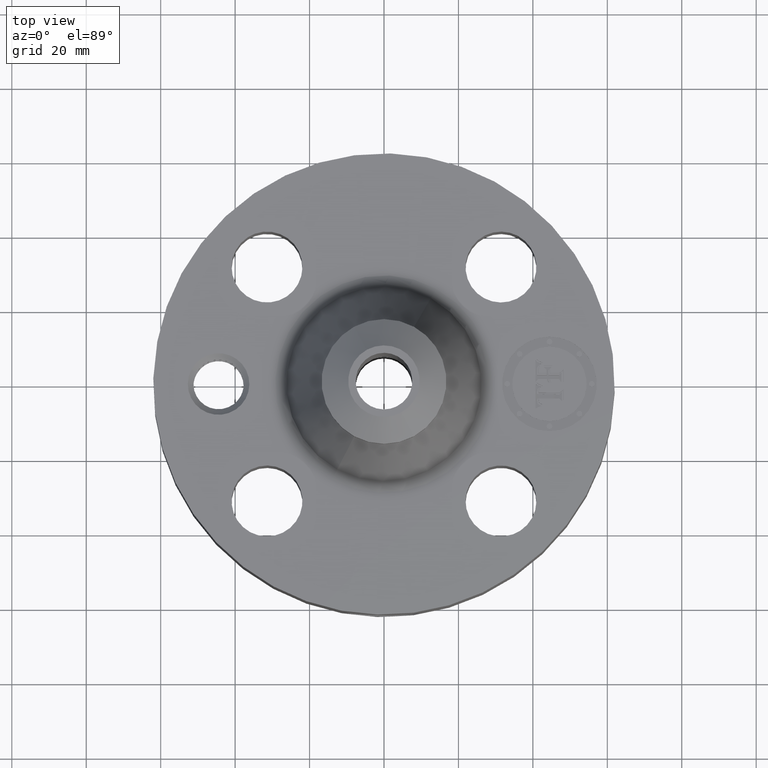
[diagram: clean part render]
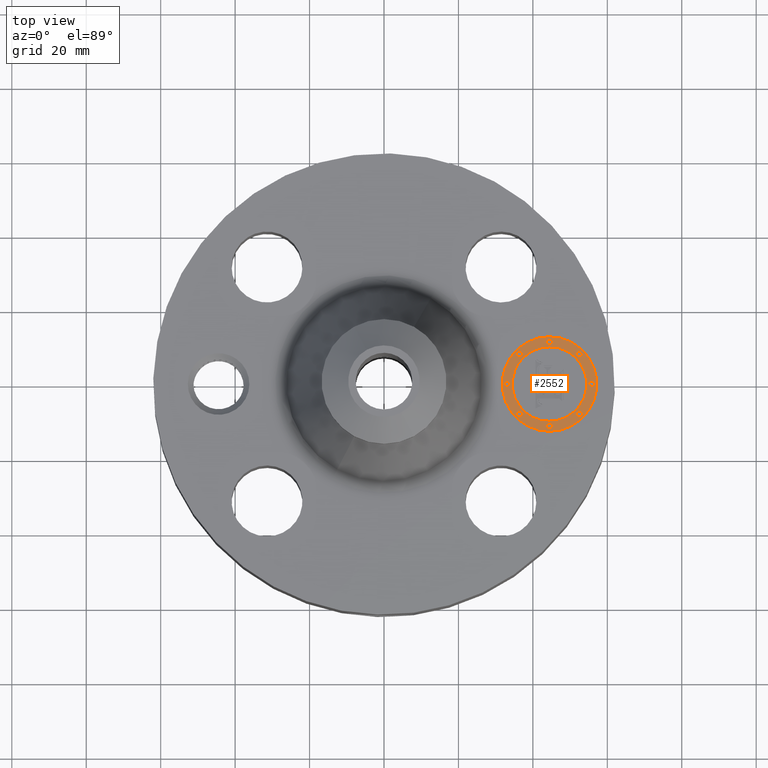
[diagram: same view with one face highlighted and labeled with its STEP entity id]
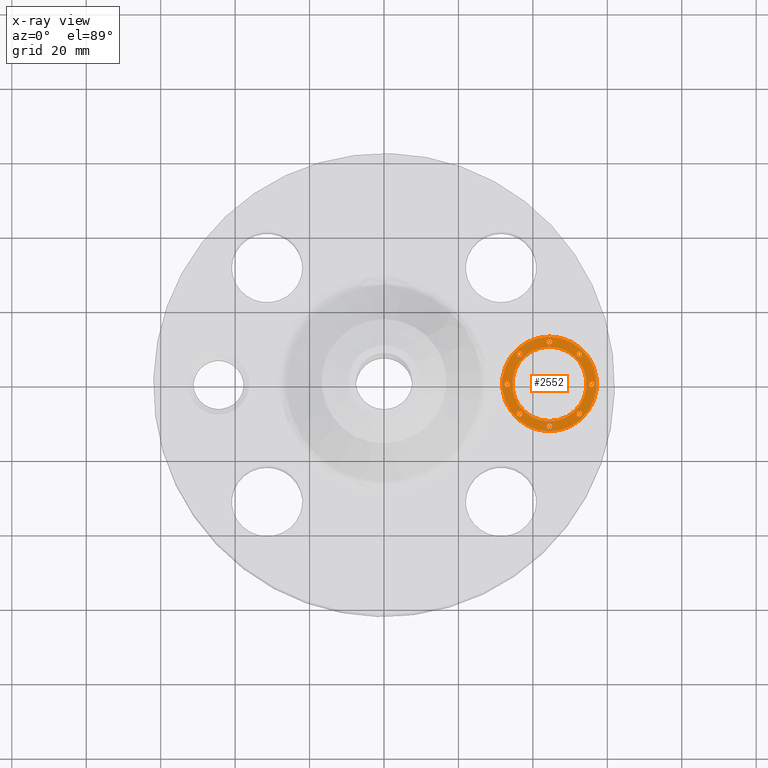
[diagram: x-ray of the same camera — body ghosted, the highlighted face saturated]
A machine part, top view. The second image highlights one B-rep face of the part: STEP entity #2552.
The next image is the same camera in x-ray: the body ghosted, the highlighted face saturated — about 0% of this face is hidden behind the body in this view.
In plain terms, the highlighted planar face has unit normal (0, 0, 1).
Its self-contained STEP definition (entity closure, byte-faithful):
#1808=AXIS2_PLACEMENT_3D('Circle Axis2P3D',#1806,#1807,$) ;
#1835=AXIS2_PLACEMENT_3D('Circle Axis2P3D',#1833,#1834,$) ;
#2384=AXIS2_PLACEMENT_3D('Plane Axis2P3D',#2381,#2382,#2383) ;
#2392=AXIS2_PLACEMENT_3D('Circle Axis2P3D',#2390,#2391,$) ;
#2401=AXIS2_PLACEMENT_3D('Circle Axis2P3D',#2399,#2400,$) ;
#2410=AXIS2_PLACEMENT_3D('Circle Axis2P3D',#2408,#2409,$) ;
#2419=AXIS2_PLACEMENT_3D('Circle Axis2P3D',#2417,#2418,$) ;
#2428=AXIS2_PLACEMENT_3D('Circle Axis2P3D',#2426,#2427,$) ;
#2437=AXIS2_PLACEMENT_3D('Circle Axis2P3D',#2435,#2436,$) ;
#2446=AXIS2_PLACEMENT_3D('Circle Axis2P3D',#2444,#2445,$) ;
#2455=AXIS2_PLACEMENT_3D('Circle Axis2P3D',#2453,#2454,$) ;
#2464=AXIS2_PLACEMENT_3D('Circle Axis2P3D',#2462,#2463,$) ;
#2473=AXIS2_PLACEMENT_3D('Circle Axis2P3D',#2471,#2472,$) ;
#2482=AXIS2_PLACEMENT_3D('Circle Axis2P3D',#2480,#2481,$) ;
#2491=AXIS2_PLACEMENT_3D('Circle Axis2P3D',#2489,#2490,$) ;
#2500=AXIS2_PLACEMENT_3D('Circle Axis2P3D',#2498,#2499,$) ;
#2509=AXIS2_PLACEMENT_3D('Circle Axis2P3D',#2507,#2508,$) ;
#2518=AXIS2_PLACEMENT_3D('Circle Axis2P3D',#2516,#2517,$) ;
#2527=AXIS2_PLACEMENT_3D('Circle Axis2P3D',#2525,#2526,$) ;
#2536=AXIS2_PLACEMENT_3D('Circle Axis2P3D',#2534,#2535,$) ;
#2545=AXIS2_PLACEMENT_3D('Circle Axis2P3D',#2543,#2544,$) ;
#1803=CARTESIAN_POINT('Vertex',(1.75000000001,-0.499999995002,1.73500000001)) ;
#1806=CARTESIAN_POINT('Axis2P3D Location',(1.75000000001,-8.76206451899E-015,1.73500000001)) ;
#1810=CARTESIAN_POINT('Vertex',(1.75000000001,0.499999995002,1.73500000001)) ;
#1833=CARTESIAN_POINT('Axis2P3D Location',(1.75000000001,-8.76206451899E-015,1.73500000001)) ;
#2381=CARTESIAN_POINT('Axis2P3D Location',(0.,0.,1.73500000001)) ;
#2390=CARTESIAN_POINT('Axis2P3D Location',(1.75000000001,-8.76206451899E-015,1.73500000001)) ;
#2394=CARTESIAN_POINT('Vertex',(1.75000000001,-0.393939390002,1.73500000001)) ;
#2396=CARTESIAN_POINT('Vertex',(1.75000000001,0.393939390002,1.73500000001)) ;
#2399=CARTESIAN_POINT('Axis2P3D Location',(1.75000000001,-8.76206451899E-015,1.73500000001)) ;
#2408=CARTESIAN_POINT('Axis2P3D Location',(1.30303030751,-1.00336155724E-014,1.73500000001)) ;
#2412=CARTESIAN_POINT('Vertex',(1.30303030751,-0.0303030300001,1.73500000001)) ;
#2414=CARTESIAN_POINT('Vertex',(1.30303030751,0.0303030300001,1.73500000001)) ;
#2417=CARTESIAN_POINT('Axis2P3D Location',(1.30303030751,-1.00336155724E-014,1.73500000001)) ;
#2426=CARTESIAN_POINT('Axis2P3D Location',(1.75000000001,0.446969692502,1.73500000001)) ;
#2430=CARTESIAN_POINT('Vertex',(1.75000000001,0.416666662502,1.73500000001)) ;
#2432=CARTESIAN_POINT('Vertex',(1.75000000001,0.477272722502,1.73500000001)) ;
#2435=CARTESIAN_POINT('Axis2P3D Location',(1.75000000001,0.446969692502,1.73500000001)) ;
#2444=CARTESIAN_POINT('Axis2P3D Location',(1.43394469945,0.316055300553,1.73500000001)) ;
#2448=CARTESIAN_POINT('Vertex',(1.43394469945,0.285752270553,1.73500000001)) ;
#2450=CARTESIAN_POINT('Vertex',(1.43394469945,0.346358330553,1.73500000001)) ;
#2453=CARTESIAN_POINT('Axis2P3D Location',(1.43394469945,0.316055300553,1.73500000001)) ;
#2462=CARTESIAN_POINT('Axis2P3D Location',(2.19696969251,2.96446186261E-015,1.73500000001)) ;
#2466=CARTESIAN_POINT('Vertex',(2.19696969251,-0.0303030300001,1.73500000001)) ;
#2468=CARTESIAN_POINT('Vertex',(2.19696969251,0.0303030300001,1.73500000001)) ;
#2471=CARTESIAN_POINT('Axis2P3D Location',(2.19696969251,2.96446186261E-015,1.73500000001)) ;
#2480=CARTESIAN_POINT('Axis2P3D Location',(2.06605530056,0.316055300553,1.73500000001)) ;
#2484=CARTESIAN_POINT('Vertex',(2.06605530056,0.285752270553,1.73500000001)) ;
#2486=CARTESIAN_POINT('Vertex',(2.06605530056,0.346358330553,1.73500000001)) ;
#2489=CARTESIAN_POINT('Axis2P3D Location',(2.06605530056,0.316055300553,1.73500000001)) ;
#2498=CARTESIAN_POINT('Axis2P3D Location',(1.75000000001,-0.446969692502,1.73500000001)) ;
#2502=CARTESIAN_POINT('Vertex',(1.75000000001,-0.416666662502,1.73500000001)) ;
#2504=CARTESIAN_POINT('Vertex',(1.75000000001,-0.477272722502,1.73500000001)) ;
#2507=CARTESIAN_POINT('Axis2P3D Location',(1.75000000001,-0.446969692502,1.73500000001)) ;
#2516=CARTESIAN_POINT('Axis2P3D Location',(1.43394469945,-0.316055300553,1.73500000001)) ;
#2520=CARTESIAN_POINT('Vertex',(1.43394469945,-0.285752270553,1.73500000001)) ;
#2522=CARTESIAN_POINT('Vertex',(1.43394469945,-0.346358330553,1.73500000001)) ;
#2525=CARTESIAN_POINT('Axis2P3D Location',(1.43394469945,-0.316055300553,1.73500000001)) ;
#2534=CARTESIAN_POINT('Axis2P3D Location',(2.06605530056,-0.316055300553,1.73500000001)) ;
#2538=CARTESIAN_POINT('Vertex',(2.06605530056,-0.285752270553,1.73500000001)) ;
#2540=CARTESIAN_POINT('Vertex',(2.06605530056,-0.346358330553,1.73500000001)) ;
#2543=CARTESIAN_POINT('Axis2P3D Location',(2.06605530056,-0.316055300553,1.73500000001)) ;
#1807=DIRECTION('Axis2P3D Direction',(0.,0.,0.0393700787402)) ;
#1834=DIRECTION('Axis2P3D Direction',(0.,0.,0.0393700787402)) ;
#2382=DIRECTION('Axis2P3D Direction',(0.,0.,0.0393700787402)) ;
#2383=DIRECTION('Axis2P3D XDirection',(0.0393700787402,0.,0.)) ;
#2391=DIRECTION('Axis2P3D Direction',(0.,0.,0.0393700787402)) ;
#2400=DIRECTION('Axis2P3D Direction',(0.,0.,0.0393700787402)) ;
#2409=DIRECTION('Axis2P3D Direction',(0.,0.,0.0393700787402)) ;
#2418=DIRECTION('Axis2P3D Direction',(0.,0.,0.0393700787402)) ;
#2427=DIRECTION('Axis2P3D Direction',(0.,0.,0.0393700787402)) ;
#2436=DIRECTION('Axis2P3D Direction',(0.,0.,0.0393700787402)) ;
#2445=DIRECTION('Axis2P3D Direction',(0.,0.,0.0393700787402)) ;
#2454=DIRECTION('Axis2P3D Direction',(0.,0.,0.0393700787402)) ;
#2463=DIRECTION('Axis2P3D Direction',(0.,0.,0.0393700787402)) ;
#2472=DIRECTION('Axis2P3D Direction',(0.,0.,0.0393700787402)) ;
#2481=DIRECTION('Axis2P3D Direction',(0.,0.,0.0393700787402)) ;
#2490=DIRECTION('Axis2P3D Direction',(0.,0.,0.0393700787402)) ;
#2499=DIRECTION('Axis2P3D Direction',(0.,0.,0.0393700787402)) ;
#2508=DIRECTION('Axis2P3D Direction',(0.,0.,0.0393700787402)) ;
#2517=DIRECTION('Axis2P3D Direction',(0.,0.,0.0393700787402)) ;
#2526=DIRECTION('Axis2P3D Direction',(0.,0.,0.0393700787402)) ;
#2535=DIRECTION('Axis2P3D Direction',(0.,0.,0.0393700787402)) ;
#2544=DIRECTION('Axis2P3D Direction',(0.,0.,0.0393700787402)) ;
#2387=ORIENTED_EDGE('',*,*,#1812,.T.) ;
#2388=ORIENTED_EDGE('',*,*,#1837,.T.) ;
#2405=ORIENTED_EDGE('',*,*,#2398,.F.) ;
#2406=ORIENTED_EDGE('',*,*,#2403,.F.) ;
#2423=ORIENTED_EDGE('',*,*,#2416,.F.) ;
#2424=ORIENTED_EDGE('',*,*,#2421,.F.) ;
#2441=ORIENTED_EDGE('',*,*,#2434,.F.) ;
#2442=ORIENTED_EDGE('',*,*,#2439,.F.) ;
#2459=ORIENTED_EDGE('',*,*,#2452,.F.) ;
#2460=ORIENTED_EDGE('',*,*,#2457,.F.) ;
#2477=ORIENTED_EDGE('',*,*,#2470,.F.) ;
#2478=ORIENTED_EDGE('',*,*,#2475,.F.) ;
#2495=ORIENTED_EDGE('',*,*,#2488,.F.) ;
#2496=ORIENTED_EDGE('',*,*,#2493,.F.) ;
#2513=ORIENTED_EDGE('',*,*,#2506,.F.) ;
#2514=ORIENTED_EDGE('',*,*,#2511,.F.) ;
#2531=ORIENTED_EDGE('',*,*,#2524,.F.) ;
#2532=ORIENTED_EDGE('',*,*,#2529,.F.) ;
#2549=ORIENTED_EDGE('',*,*,#2542,.F.) ;
#2550=ORIENTED_EDGE('',*,*,#2547,.F.) ;
#2407=FACE_BOUND('',#2404,.T.) ;
#2425=FACE_BOUND('',#2422,.T.) ;
#2443=FACE_BOUND('',#2440,.T.) ;
#2461=FACE_BOUND('',#2458,.T.) ;
#2479=FACE_BOUND('',#2476,.T.) ;
#2497=FACE_BOUND('',#2494,.T.) ;
#2515=FACE_BOUND('',#2512,.T.) ;
#2533=FACE_BOUND('',#2530,.T.) ;
#2551=FACE_BOUND('',#2548,.T.) ;
#2552=ADVANCED_FACE('PartBody',(#2389,#2407,#2425,#2443,#2461,#2479,#2497,#2515,#2533,#2551),#2385,.T.) ;
#1809=CIRCLE('generated circle',#1808,0.499999995002) ;
#1836=CIRCLE('generated circle',#1835,0.499999995002) ;
#2393=CIRCLE('generated circle',#2392,0.393939390002) ;
#2402=CIRCLE('generated circle',#2401,0.393939390002) ;
#2411=CIRCLE('generated circle',#2410,0.0303030300001) ;
#2420=CIRCLE('generated circle',#2419,0.0303030300001) ;
#2429=CIRCLE('generated circle',#2428,0.0303030300001) ;
#2438=CIRCLE('generated circle',#2437,0.0303030300001) ;
#2447=CIRCLE('generated circle',#2446,0.0303030300001) ;
#2456=CIRCLE('generated circle',#2455,0.0303030300001) ;
#2465=CIRCLE('generated circle',#2464,0.0303030300001) ;
#2474=CIRCLE('generated circle',#2473,0.0303030300001) ;
#2483=CIRCLE('generated circle',#2482,0.0303030300001) ;
#2492=CIRCLE('generated circle',#2491,0.0303030300001) ;
#2501=CIRCLE('generated circle',#2500,0.0303030300001) ;
#2510=CIRCLE('generated circle',#2509,0.0303030300001) ;
#2519=CIRCLE('generated circle',#2518,0.0303030300001) ;
#2528=CIRCLE('generated circle',#2527,0.0303030300001) ;
#2537=CIRCLE('generated circle',#2536,0.0303030300001) ;
#2546=CIRCLE('generated circle',#2545,0.0303030300001) ;
#1812=EDGE_CURVE('',#1811,#1804,#1809,.T.) ;
#1837=EDGE_CURVE('',#1804,#1811,#1836,.T.) ;
#2398=EDGE_CURVE('',#2395,#2397,#2393,.T.) ;
#2403=EDGE_CURVE('',#2397,#2395,#2402,.T.) ;
#2416=EDGE_CURVE('',#2413,#2415,#2411,.T.) ;
#2421=EDGE_CURVE('',#2415,#2413,#2420,.T.) ;
#2434=EDGE_CURVE('',#2431,#2433,#2429,.T.) ;
#2439=EDGE_CURVE('',#2433,#2431,#2438,.T.) ;
#2452=EDGE_CURVE('',#2449,#2451,#2447,.T.) ;
#2457=EDGE_CURVE('',#2451,#2449,#2456,.T.) ;
#2470=EDGE_CURVE('',#2467,#2469,#2465,.T.) ;
#2475=EDGE_CURVE('',#2469,#2467,#2474,.T.) ;
#2488=EDGE_CURVE('',#2485,#2487,#2483,.T.) ;
#2493=EDGE_CURVE('',#2487,#2485,#2492,.T.) ;
#2506=EDGE_CURVE('',#2503,#2505,#2501,.T.) ;
#2511=EDGE_CURVE('',#2505,#2503,#2510,.T.) ;
#2524=EDGE_CURVE('',#2521,#2523,#2519,.T.) ;
#2529=EDGE_CURVE('',#2523,#2521,#2528,.T.) ;
#2542=EDGE_CURVE('',#2539,#2541,#2537,.T.) ;
#2547=EDGE_CURVE('',#2541,#2539,#2546,.T.) ;
#2386=EDGE_LOOP('',(#2387,#2388)) ;
#2404=EDGE_LOOP('',(#2405,#2406)) ;
#2422=EDGE_LOOP('',(#2423,#2424)) ;
#2440=EDGE_LOOP('',(#2441,#2442)) ;
#2458=EDGE_LOOP('',(#2459,#2460)) ;
#2476=EDGE_LOOP('',(#2477,#2478)) ;
#2494=EDGE_LOOP('',(#2495,#2496)) ;
#2512=EDGE_LOOP('',(#2513,#2514)) ;
#2530=EDGE_LOOP('',(#2531,#2532)) ;
#2548=EDGE_LOOP('',(#2549,#2550)) ;
#2389=FACE_OUTER_BOUND('',#2386,.T.) ;
#2385=PLANE('',#2384) ;
#1804=VERTEX_POINT('',#1803) ;
#1811=VERTEX_POINT('',#1810) ;
#2395=VERTEX_POINT('',#2394) ;
#2397=VERTEX_POINT('',#2396) ;
#2413=VERTEX_POINT('',#2412) ;
#2415=VERTEX_POINT('',#2414) ;
#2431=VERTEX_POINT('',#2430) ;
#2433=VERTEX_POINT('',#2432) ;
#2449=VERTEX_POINT('',#2448) ;
#2451=VERTEX_POINT('',#2450) ;
#2467=VERTEX_POINT('',#2466) ;
#2469=VERTEX_POINT('',#2468) ;
#2485=VERTEX_POINT('',#2484) ;
#2487=VERTEX_POINT('',#2486) ;
#2503=VERTEX_POINT('',#2502) ;
#2505=VERTEX_POINT('',#2504) ;
#2521=VERTEX_POINT('',#2520) ;
#2523=VERTEX_POINT('',#2522) ;
#2539=VERTEX_POINT('',#2538) ;
#2541=VERTEX_POINT('',#2540) ;